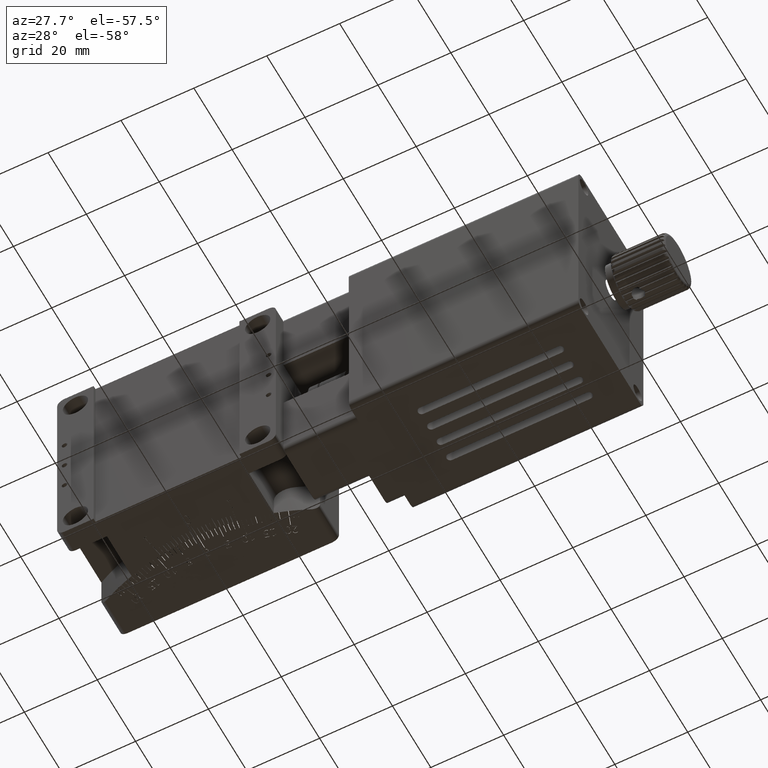
[diagram: clean part render]
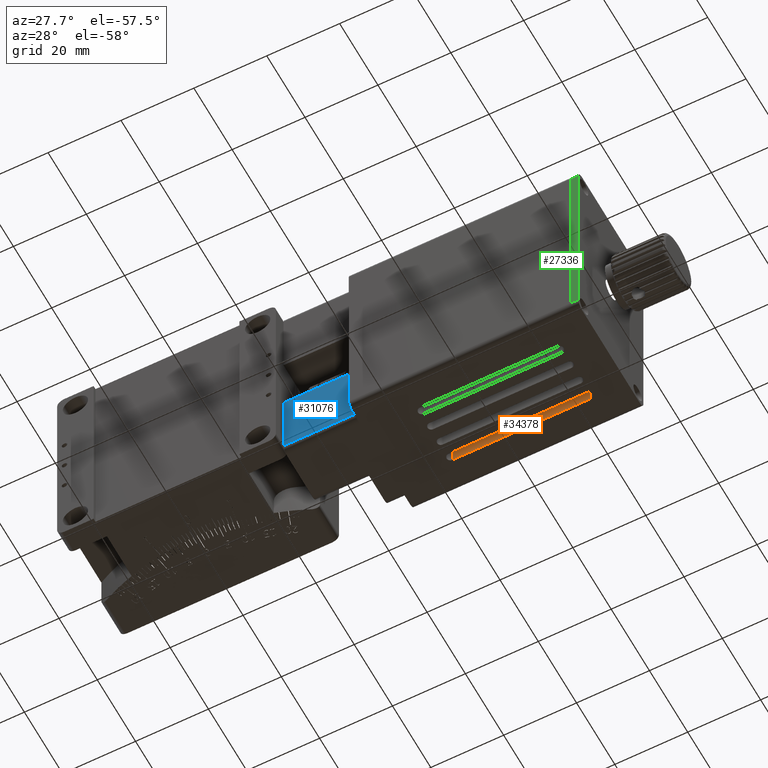
[diagram: same view with three faces highlighted in distinct colors, each labeled with its STEP entity id]
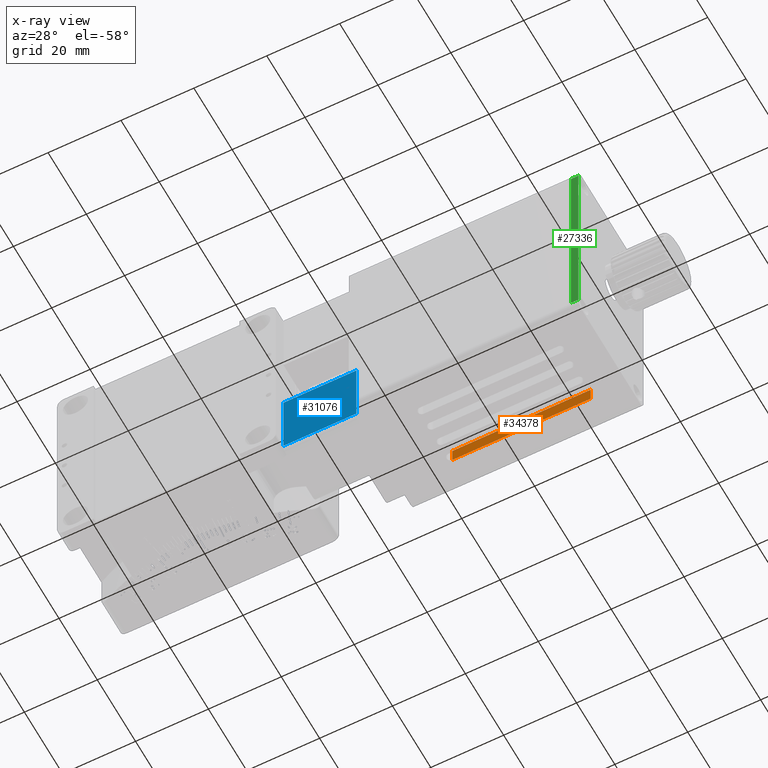
[diagram: x-ray of the same camera — body ghosted, the three highlighted faces saturated]
A machine part, auxiliary view with three faces highlighted in distinct colors.
The next image is the same camera in x-ray (body ghosted, the three faces saturated) — at least one of them is partly hidden behind the body in this view.
Their STEP definitions:

[orange] entity #34378 — the highlighted planar face has unit normal (0, 1, -0).
#1098 = LINE ( 'NONE', #13079, #20624 ) ;
#1483 = CARTESIAN_POINT ( 'NONE',  ( 103.0000000000000000, 25.50000000000000400, -26.00000000000000700 ) ) ;
#1883 = EDGE_LOOP ( 'NONE', ( #22666, #22751, #11403, #30218 ) ) ;
#2959 = DIRECTION ( 'NONE',  ( 1.000000000000000000, -0.0000000000000000000, 0.0000000000000000000 ) ) ;
#5594 = VERTEX_POINT ( 'NONE', #49701 ) ;
#6338 = DIRECTION ( 'NONE',  ( 0.0000000000000000000, 1.000000000000000000, -0.0000000000000000000 ) ) ;
#10450 = FACE_OUTER_BOUND ( 'NONE', #1883, .T. ) ;
#11403 = ORIENTED_EDGE ( 'NONE', *, *, #37970, .F. ) ;
#13079 = CARTESIAN_POINT ( 'NONE',  ( 103.0000000000000000, 25.50000000000000400, -30.00000000000001100 ) ) ;
#14327 = CARTESIAN_POINT ( 'NONE',  ( 103.0000000000000000, 25.50000000000000400, 30.00099999999999100 ) ) ;
#15309 = VECTOR ( 'NONE', #2959, 1000.000000000000000 ) ;
#16047 = VERTEX_POINT ( 'NONE', #1483 ) ;
#20149 = EDGE_CURVE ( 'NONE', #5594, #16047, #26850, .T. ) ;
#20624 = VECTOR ( 'NONE', #28696, 1000.000000000000000 ) ;
#22167 = CARTESIAN_POINT ( 'NONE',  ( 65.00000000000000000, 25.50000000000000400, 30.00099999999999100 ) ) ;
#22398 = CARTESIAN_POINT ( 'NONE',  ( 103.0000000000000000, 25.50000000000000400, -26.00000000000000700 ) ) ;
#22666 = ORIENTED_EDGE ( 'NONE', *, *, #50202, .T. ) ;
#22751 = ORIENTED_EDGE ( 'NONE', *, *, #35286, .T. ) ;
#24247 = VECTOR ( 'NONE', #41134, 1000.000000000000000 ) ;
#26372 = CARTESIAN_POINT ( 'NONE',  ( 65.00000000000000000, 25.50000000000000400, -30.00000000000001100 ) ) ;
#26850 = LINE ( 'NONE', #22398, #15309 ) ;
#28696 = DIRECTION ( 'NONE',  ( 1.000000000000000000, -0.0000000000000000000, -0.0000000000000000000 ) ) ;
#29054 = LINE ( 'NONE', #14327, #38158 ) ;
#29647 = CARTESIAN_POINT ( 'NONE',  ( 103.0000000000000000, 25.50000000000000400, 30.00099999999999100 ) ) ;
#30218 = ORIENTED_EDGE ( 'NONE', *, *, #20149, .F. ) ;
#33361 = PLANE ( 'NONE',  #41649 ) ;
#33531 = DIRECTION ( 'NONE',  ( 0.0000000000000000000, 0.0000000000000000000, 1.000000000000000000 ) ) ;
#33943 = VERTEX_POINT ( 'NONE', #45955 ) ;
#34378 = ADVANCED_FACE ( 'NONE', ( #10450 ), #33361, .F. ) ;
#35286 = EDGE_CURVE ( 'NONE', #38031, #33943, #1098, .T. ) ;
#37970 = EDGE_CURVE ( 'NONE', #16047, #33943, #29054, .T. ) ;
#38031 = VERTEX_POINT ( 'NONE', #26372 ) ;
#38158 = VECTOR ( 'NONE', #45365, 1000.000000000000000 ) ;
#41134 = DIRECTION ( 'NONE',  ( -0.0000000000000000000, -0.0000000000000000000, -1.000000000000000000 ) ) ;
#41649 = AXIS2_PLACEMENT_3D ( 'NONE', #29647, #6338, #33531 ) ;
#44882 = LINE ( 'NONE', #22167, #24247 ) ;
#45365 = DIRECTION ( 'NONE',  ( -0.0000000000000000000, -0.0000000000000000000, -1.000000000000000000 ) ) ;
#45955 = CARTESIAN_POINT ( 'NONE',  ( 103.0000000000000000, 25.50000000000000400, -30.00000000000001100 ) ) ;
#49701 = CARTESIAN_POINT ( 'NONE',  ( 65.00000000000000000, 25.50000000000000400, -26.00000000000000700 ) ) ;
#50202 = EDGE_CURVE ( 'NONE', #5594, #38031, #44882, .T. ) ;

[blue] entity #31076 — the highlighted planar face has unit normal (-0, 1, 0).
#165 = CARTESIAN_POINT ( 'NONE',  ( 50.00000000000000000, 4.000000000000003600, -8.500000000000001800 ) ) ;
#1608 = VERTEX_POINT ( 'NONE', #26710 ) ;
#1699 = VERTEX_POINT ( 'NONE', #15505 ) ;
#1968 = DIRECTION ( 'NONE',  ( 1.000000000000000000, 0.0000000000000000000, -0.0000000000000000000 ) ) ;
#2429 = EDGE_CURVE ( 'NONE', #46620, #19483, #4577, .T. ) ;
#2676 = DIRECTION ( 'NONE',  ( -0.0000000000000000000, 1.000000000000000000, 2.420544385083917200E-016 ) ) ;
#3834 = ORIENTED_EDGE ( 'NONE', *, *, #6200, .T. ) ;
#4577 = LINE ( 'NONE', #24756, #44706 ) ;
#6200 = EDGE_CURVE ( 'NONE', #46620, #1608, #46884, .T. ) ;
#10190 = EDGE_CURVE ( 'NONE', #1699, #19483, #24254, .T. ) ;
#12875 = DIRECTION ( 'NONE',  ( -0.0000000000000000000, 2.420544385083917200E-016, -1.000000000000000000 ) ) ;
#15505 = CARTESIAN_POINT ( 'NONE',  ( 30.00000000000000000, 4.000000000000008900, -28.00000000000000000 ) ) ;
#15981 = LINE ( 'NONE', #39417, #36622 ) ;
#16143 = DIRECTION ( 'NONE',  ( -0.0000000000000000000, 2.420544385083917200E-016, -1.000000000000000000 ) ) ;
#16770 = CARTESIAN_POINT ( 'NONE',  ( 50.00000000000000000, 4.000000000000003600, -8.500000000000001800 ) ) ;
#16925 = ORIENTED_EDGE ( 'NONE', *, *, #10190, .T. ) ;
#19483 = VERTEX_POINT ( 'NONE', #34866 ) ;
#24254 = LINE ( 'NONE', #48709, #44886 ) ;
#24756 = CARTESIAN_POINT ( 'NONE',  ( 50.00000000000000000, 4.000000000000008900, -30.00000000000000400 ) ) ;
#25979 = CARTESIAN_POINT ( 'NONE',  ( 50.00000000000000000, 4.000000000000008900, -30.00000000000000400 ) ) ;
#26241 = VECTOR ( 'NONE', #27394, 1000.000000000000000 ) ;
#26710 = CARTESIAN_POINT ( 'NONE',  ( 30.00000000000000000, 4.000000000000003600, -8.500000000000001800 ) ) ;
#26869 = AXIS2_PLACEMENT_3D ( 'NONE', #25979, #2676, #29902 ) ;
#27394 = DIRECTION ( 'NONE',  ( -1.000000000000000000, -0.0000000000000000000, -0.0000000000000000000 ) ) ;
#29462 = ORIENTED_EDGE ( 'NONE', *, *, #2429, .F. ) ;
#29902 = DIRECTION ( 'NONE',  ( 0.0000000000000000000, -2.420544385083917200E-016, 1.000000000000000000 ) ) ;
#31076 = ADVANCED_FACE ( 'NONE', ( #34288 ), #33624, .F. ) ;
#33624 = PLANE ( 'NONE',  #26869 ) ;
#34288 = FACE_OUTER_BOUND ( 'NONE', #48021, .T. ) ;
#34866 = CARTESIAN_POINT ( 'NONE',  ( 50.00000000000000000, 4.000000000000008900, -28.00000000000000000 ) ) ;
#36622 = VECTOR ( 'NONE', #16143, 1000.000000000000000 ) ;
#39417 = CARTESIAN_POINT ( 'NONE',  ( 30.00000000000000000, 4.000000000000008900, -30.00000000000000400 ) ) ;
#41857 = EDGE_CURVE ( 'NONE', #1608, #1699, #15981, .T. ) ;
#44706 = VECTOR ( 'NONE', #12875, 1000.000000000000000 ) ;
#44886 = VECTOR ( 'NONE', #1968, 1000.000000000000000 ) ;
#45960 = ORIENTED_EDGE ( 'NONE', *, *, #41857, .T. ) ;
#46620 = VERTEX_POINT ( 'NONE', #16770 ) ;
#46884 = LINE ( 'NONE', #165, #26241 ) ;
#48021 = EDGE_LOOP ( 'NONE', ( #45960, #16925, #29462, #3834 ) ) ;
#48709 = CARTESIAN_POINT ( 'NONE',  ( 50.00000000000000000, 4.000000000000008900, -28.00000000000000000 ) ) ;

[green] entity #27336 — the highlighted planar face has unit normal (-0, 1, 0).
#88 = CARTESIAN_POINT ( 'NONE',  ( 112.9999999999999900, 3.469446951953614200E-015, -29.99999999999999600 ) ) ;
#690 = DIRECTION ( 'NONE',  ( 1.000000000000000000, 0.0000000000000000000, -0.0000000000000000000 ) ) ;
#1002 = CARTESIAN_POINT ( 'NONE',  ( 110.9999999999999900, -3.469446951953614200E-015, 28.00000000000000000 ) ) ;
#1929 = ORIENTED_EDGE ( 'NONE', *, *, #2828, .T. ) ;
#2828 = EDGE_CURVE ( 'NONE', #34796, #42828, #42240, .T. ) ;
#3024 = VECTOR ( 'NONE', #4026, 1000.000000000000000 ) ;
#4026 = DIRECTION ( 'NONE',  ( -0.0000000000000000000, 1.156482317317871500E-016, -1.000000000000000000 ) ) ;
#6169 = CARTESIAN_POINT ( 'NONE',  ( 110.9999999999999900, 3.469446951953614200E-015, -29.99999999999999600 ) ) ;
#6326 = DIRECTION ( 'NONE',  ( -0.0000000000000000000, 1.156482317317871500E-016, -1.000000000000000000 ) ) ;
#8228 = CARTESIAN_POINT ( 'NONE',  ( 112.9999999999999900, 3.469446951953614200E-015, -27.99999999999999600 ) ) ;
#8367 = VECTOR ( 'NONE', #6326, 1000.000000000000000 ) ;
#12387 = ORIENTED_EDGE ( 'NONE', *, *, #27784, .F. ) ;
#13394 = VERTEX_POINT ( 'NONE', #1002 ) ;
#15653 = CARTESIAN_POINT ( 'NONE',  ( 112.9999999999999900, 3.469446951953614200E-015, -29.99999999999999600 ) ) ;
#18737 = LINE ( 'NONE', #6169, #8367 ) ;
#19596 = DIRECTION ( 'NONE',  ( 0.0000000000000000000, -1.156482317317871500E-016, 1.000000000000000000 ) ) ;
#21994 = ORIENTED_EDGE ( 'NONE', *, *, #32928, .T. ) ;
#22738 = VERTEX_POINT ( 'NONE', #36530 ) ;
#27217 = EDGE_LOOP ( 'NONE', ( #21994, #1929, #12387, #30853 ) ) ;
#27336 = ADVANCED_FACE ( 'NONE', ( #44976 ), #50491, .F. ) ;
#27784 = EDGE_CURVE ( 'NONE', #22738, #42828, #43175, .T. ) ;
#27883 = AXIS2_PLACEMENT_3D ( 'NONE', #15653, #42839, #19596 ) ;
#30302 = VECTOR ( 'NONE', #31519, 1000.000000000000000 ) ;
#30853 = ORIENTED_EDGE ( 'NONE', *, *, #32616, .T. ) ;
#31519 = DIRECTION ( 'NONE',  ( -1.000000000000000000, 0.0000000000000000000, 0.0000000000000000000 ) ) ;
#31523 = LINE ( 'NONE', #47299, #30302 ) ;
#31894 = VECTOR ( 'NONE', #690, 1000.000000000000000 ) ;
#32616 = EDGE_CURVE ( 'NONE', #22738, #13394, #31523, .T. ) ;
#32928 = EDGE_CURVE ( 'NONE', #13394, #34796, #18737, .T. ) ;
#34796 = VERTEX_POINT ( 'NONE', #44029 ) ;
#36530 = CARTESIAN_POINT ( 'NONE',  ( 112.9999999999999900, -3.469446951953614200E-015, 28.00000000000000000 ) ) ;
#37934 = CARTESIAN_POINT ( 'NONE',  ( 112.9999999999999900, 3.469446951953614200E-015, -27.99999999999999600 ) ) ;
#42240 = LINE ( 'NONE', #8228, #31894 ) ;
#42828 = VERTEX_POINT ( 'NONE', #37934 ) ;
#42839 = DIRECTION ( 'NONE',  ( -0.0000000000000000000, 1.000000000000000000, 1.156482317317871500E-016 ) ) ;
#43175 = LINE ( 'NONE', #88, #3024 ) ;
#44029 = CARTESIAN_POINT ( 'NONE',  ( 110.9999999999999900, 3.469446951953614200E-015, -27.99999999999999600 ) ) ;
#44976 = FACE_OUTER_BOUND ( 'NONE', #27217, .T. ) ;
#47299 = CARTESIAN_POINT ( 'NONE',  ( 112.9999999999999900, -3.469446951953614200E-015, 28.00000000000001400 ) ) ;
#50491 = PLANE ( 'NONE',  #27883 ) ;